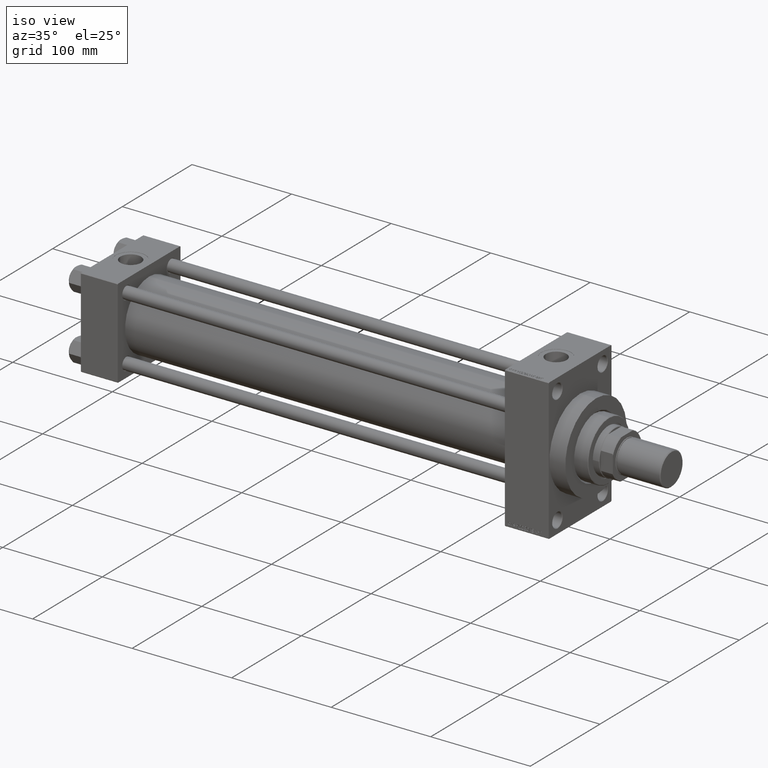
[diagram: clean part render]
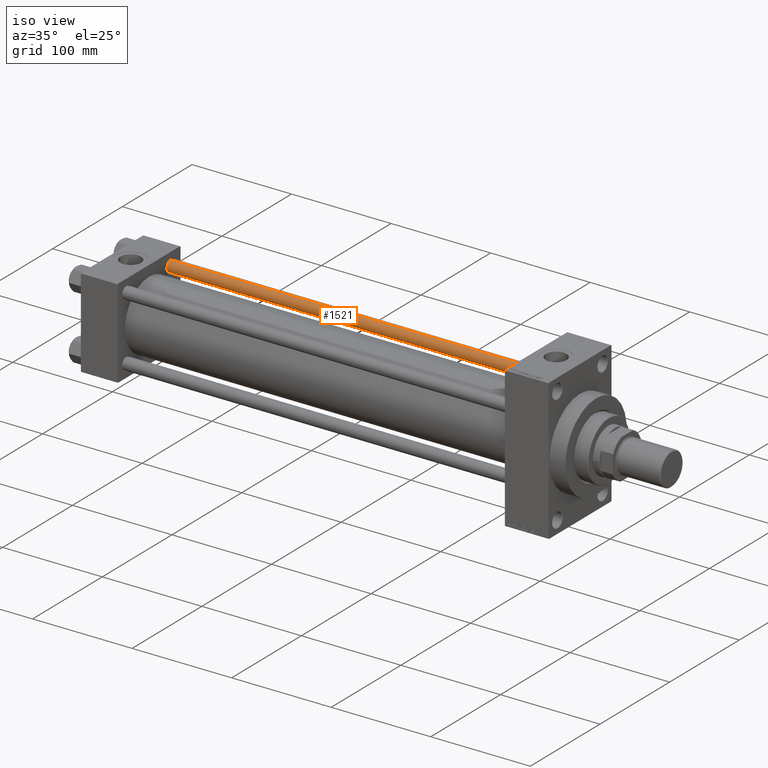
[diagram: same view with one face highlighted and labeled with its STEP entity id]
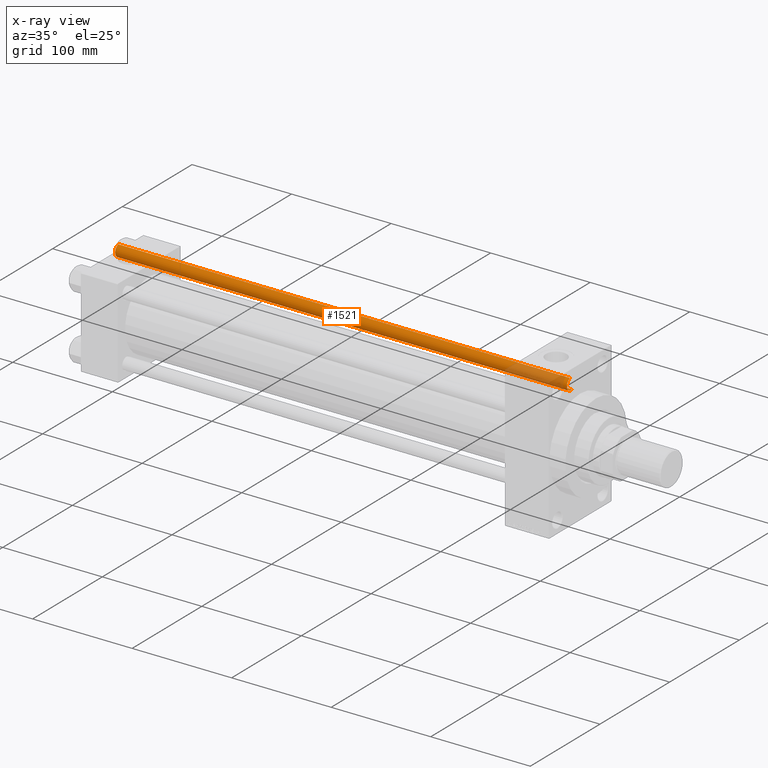
[diagram: x-ray of the same camera — body ghosted, the highlighted face saturated]
A machine part, iso view. The second image highlights one B-rep face of the part: STEP entity #1521.
The next image is the same camera in x-ray: the body ghosted, the highlighted face saturated — about 12% of this face is hidden behind the body in this view.
In plain terms, the highlighted cylindrical surface (edge-blend (fillet) strip) has radius 6 mm, axis along (-1, -0, 0).
Its self-contained STEP definition (entity closure, byte-faithful):
#231 = CARTESIAN_POINT ( 'NONE',  ( 0.000000000000000000, 0.000000000000000000, 0.5000000000002224887 ) ) ;
#396 = DIRECTION ( 'NONE',  ( -0.000000000000000000, -0.000000000000000000, -1.000000000000000000 ) ) ;
#1521 = ADVANCED_FACE ( 'NONE', ( #44476 ), #36526, .T. ) ;
#1706 = VERTEX_POINT ( 'NONE', #16980 ) ;
#3179 = AXIS2_PLACEMENT_3D ( 'NONE', #44005, #396, #11002 ) ;
#3465 = EDGE_CURVE ( 'NONE', #44211, #1706, #40036, .T. ) ;
#3836 = DIRECTION ( 'NONE',  ( -0.000000000000000000, -0.000000000000000000, 1.000000000000000000 ) ) ;
#6108 = CIRCLE ( 'NONE', #7630, 6.000000000000000888 ) ;
#7031 = DIRECTION ( 'NONE',  ( -0.000000000000000000, -0.000000000000000000, -1.000000000000000000 ) ) ;
#7630 = AXIS2_PLACEMENT_3D ( 'NONE', #13924, #9205, #8491 ) ;
#8491 = DIRECTION ( 'NONE',  ( 1.000000000000000000, 0.000000000000000000, 0.000000000000000000 ) ) ;
#8907 = AXIS2_PLACEMENT_3D ( 'NONE', #231, #3836, #18523 ) ;
#9205 = DIRECTION ( 'NONE',  ( 0.000000000000000000, 0.000000000000000000, -1.000000000000000000 ) ) ;
#11002 = DIRECTION ( 'NONE',  ( -1.000000000000000000, 0.000000000000000000, 0.000000000000000000 ) ) ;
#12480 = VECTOR ( 'NONE', #7031, 1000.000000000000000 ) ;
#13924 = CARTESIAN_POINT ( 'NONE',  ( 0.000000000000000000, 0.000000000000000000, 454.5000000000002842 ) ) ;
#14341 = CARTESIAN_POINT ( 'NONE',  ( 6.000000000000000888, 7.347880794884119736E-16, 454.5000000000002842 ) ) ;
#14655 = EDGE_CURVE ( 'NONE', #1706, #43929, #40434, .T. ) ;
#16047 = ORIENTED_EDGE ( 'NONE', *, *, #14655, .T. ) ;
#16980 = CARTESIAN_POINT ( 'NONE',  ( -6.000000000000000888, 0.000000000000000000, 0.5000000000002224887 ) ) ;
#18523 = DIRECTION ( 'NONE',  ( 1.000000000000000000, 0.000000000000000000, 0.000000000000000000 ) ) ;
#18824 = CARTESIAN_POINT ( 'NONE',  ( -6.000000000000000888, 0.000000000000000000, 454.5000000000002842 ) ) ;
#19983 = ORIENTED_EDGE ( 'NONE', *, *, #26416, .T. ) ;
#20138 = DIRECTION ( 'NONE',  ( -0.000000000000000000, -0.000000000000000000, -1.000000000000000000 ) ) ;
#26416 = EDGE_CURVE ( 'NONE', #40602, #44211, #6108, .T. ) ;
#27609 = LINE ( 'NONE', #34605, #35300 ) ;
#34605 = CARTESIAN_POINT ( 'NONE',  ( 6.000000000000000888, 7.347880794884119736E-16, 455.0000000000000000 ) ) ;
#35300 = VECTOR ( 'NONE', #20138, 1000.000000000000000 ) ;
#35796 = ORIENTED_EDGE ( 'NONE', *, *, #3465, .T. ) ;
#36237 = EDGE_LOOP ( 'NONE', ( #41799, #19983, #35796, #16047 ) ) ;
#36526 = CYLINDRICAL_SURFACE ( 'NONE', #3179, 6.000000000000000888 ) ;
#40036 = LINE ( 'NONE', #43647, #12480 ) ;
#40434 = CIRCLE ( 'NONE', #8907, 6.000000000000000888 ) ;
#40602 = VERTEX_POINT ( 'NONE', #14341 ) ;
#41799 = ORIENTED_EDGE ( 'NONE', *, *, #47414, .F. ) ;
#43647 = CARTESIAN_POINT ( 'NONE',  ( -6.000000000000000888, 0.000000000000000000, 455.0000000000000000 ) ) ;
#43929 = VERTEX_POINT ( 'NONE', #44679 ) ;
#44005 = CARTESIAN_POINT ( 'NONE',  ( 0.000000000000000000, 0.000000000000000000, 455.0000000000000000 ) ) ;
#44211 = VERTEX_POINT ( 'NONE', #18824 ) ;
#44476 = FACE_OUTER_BOUND ( 'NONE', #36237, .T. ) ;
#44679 = CARTESIAN_POINT ( 'NONE',  ( 6.000000000000000888, 7.347880794884119736E-16, 0.5000000000002224887 ) ) ;
#47414 = EDGE_CURVE ( 'NONE', #40602, #43929, #27609, .T. ) ;